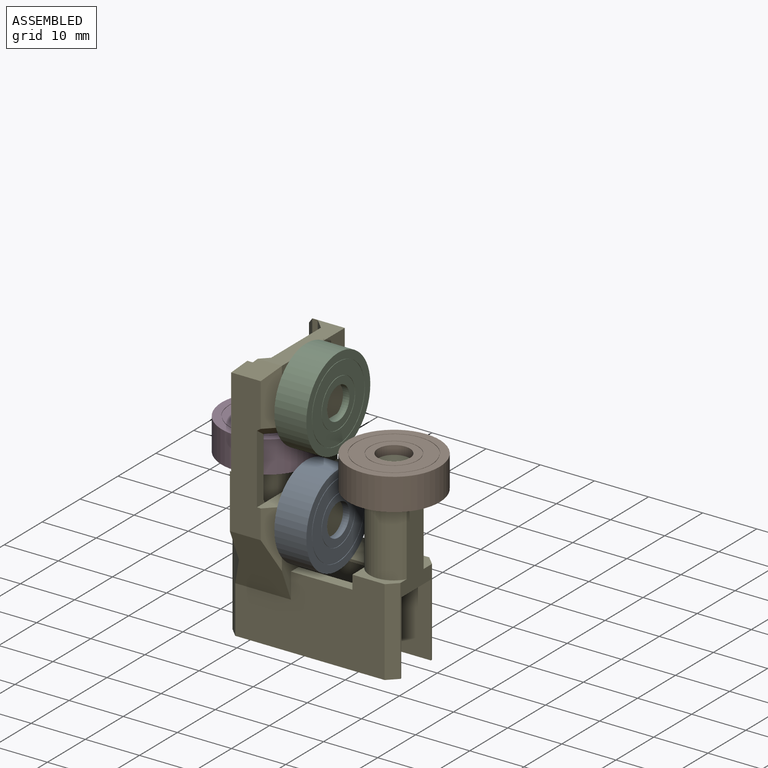
[diagram: assembled view]
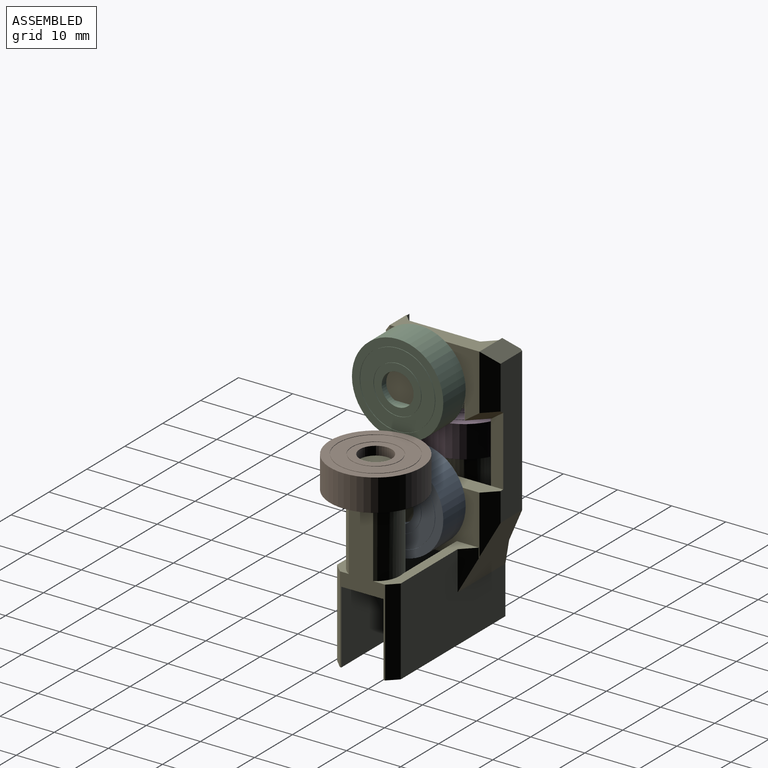
[diagram: assembled view, second angle]
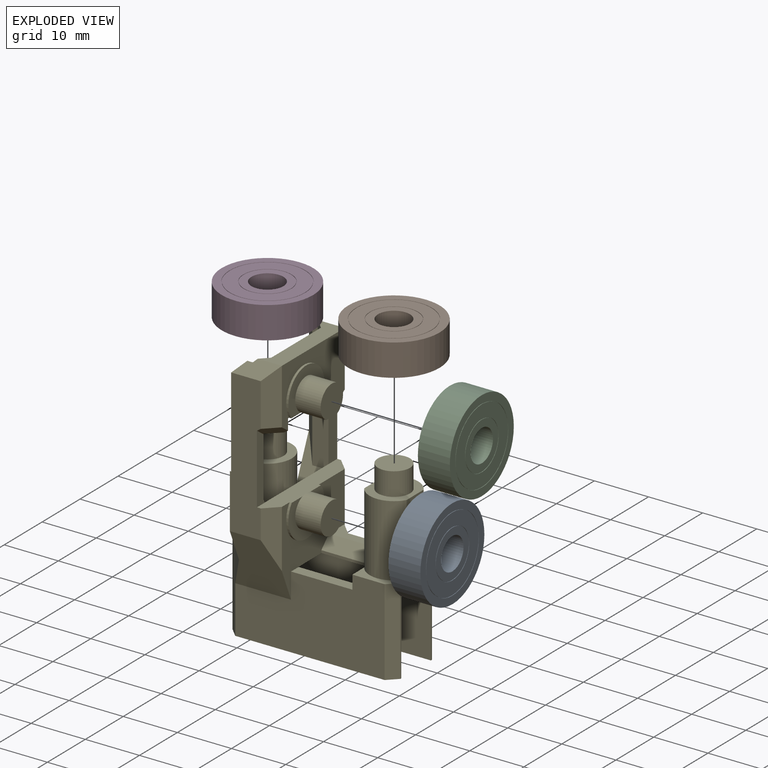
[diagram: exploded view]
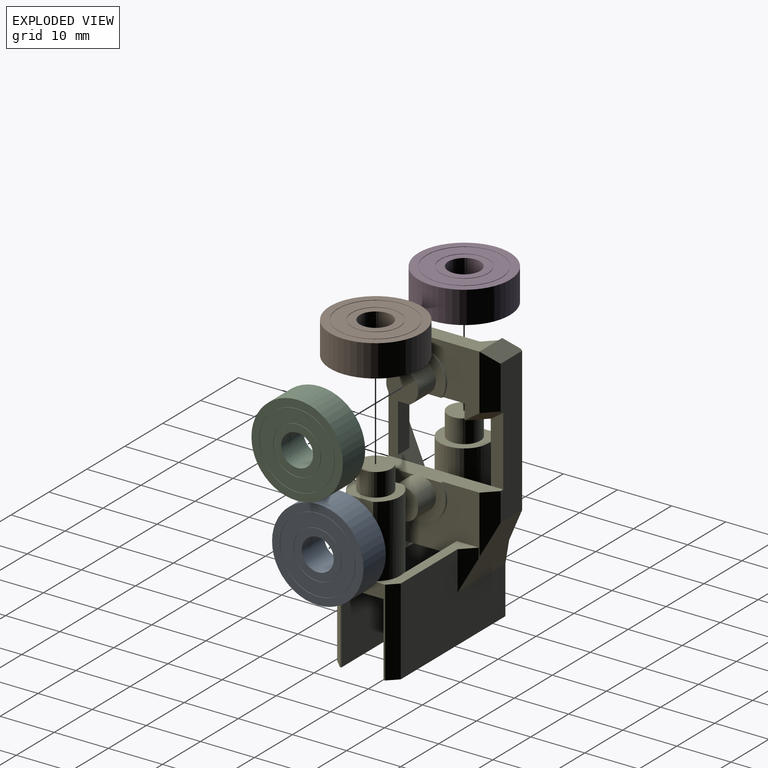
[diagram: exploded view, second angle]
ASSEMBLY  parts=5 mates=4
PART A: 20 faces, bbox 5.9x16.9x16.9 mm
  f0: plane 8.9x8.9mm, normal (1,0,0), area 2.8mm2, adj f11,f17
  f1: plane 8.9x8.9mm, normal (-1,0,0), area 2.8mm2, adj f2,f15
  f2: cylinder r=4.45mm len=8.9mm, axis (1,0,0), area 2.8mm2, adj f1,f13
  f3: plane 14x14mm, normal (1,0,0), area 4.4mm2, adj f6,f12
  f4: plane 14x14mm, normal (-1,0,0), area 4.4mm2, adj f5,f10
  f5: cylinder r=7mm len=14mm, axis (1,0,0), area 4.4mm2, adj f4,f8
  f6: cylinder r=7mm len=14mm, axis (1,0,0), area 4.4mm2, adj f3,f9
  f7: cylinder r=8.44mm len=16.88mm, axis (1,0,0), area 312.9mm2, adj f8,f9
  f8: plane 16.88x16.88mm, normal (-1,0,0), area 69.8mm2, adj f5,f7
  f9: plane 16.88x16.88mm, normal (1,0,0), area 69.8mm2, adj f6,f7
  f10: cylinder r=6.9mm len=13.8mm, axis (1,0,0), area 4.3mm2, adj f4,f13
  f11: cylinder r=4.45mm len=8.9mm, axis (1,0,0), area 2.8mm2, adj f0,f14
  f12: cylinder r=6.9mm len=13.8mm, axis (1,0,0), area 4.3mm2, adj f3,f14
  f13: plane 13.8x13.8mm, normal (-1,0,0), area 87.4mm2, adj f2,f10
  f14: plane 13.8x13.8mm, normal (1,0,0), area 87.4mm2, adj f11,f12
  f15: cylinder r=4.35mm len=8.7mm, axis (1,0,0), area 2.7mm2, adj f1,f18
  f16: cylinder r=2.95mm len=5.9mm, axis (1,0,0), area 109.4mm2, adj f18,f19
  f17: cylinder r=4.35mm len=8.7mm, axis (1,0,0), area 2.7mm2, adj f0,f19
  f18: plane 8.7x8.7mm, normal (-1,0,0), area 32.1mm2, adj f15,f16
  f19: plane 8.7x8.7mm, normal (1,0,0), area 32.1mm2, adj f16,f17
PART B: same geometry as A
PART C: same geometry as A
PART D: same geometry as A
PART E: 82 faces, bbox 31.6x21.7x49.3 mm
  f0: plane 2.01x1.02mm, normal (0,0,1), area 0.8mm2, adj f13,f45,f66
  f1: plane 16.59x12.19mm, normal (1,0,0), area 104.2mm2, adj f3,f4,f26,f29,f38,f59,f61,f76
  f2: plane 16.89x6.9mm, normal (-1,0,0), area 99.1mm2, adj f13,f32,f33,f57,f66
  f3: plane 2.88x0.7mm, normal (0,-1,0), area 2mm2, adj f1,f26,f56,f69,f77
  f4: plane 2.53x0.7mm, normal (0,1,0), area 1.6mm2, adj f1,f26,f71,f76
  f5: cylinder r=4.75mm len=3.54mm, axis (-1,0,0), area 1.5mm2, adj f15,f41,f42,f57
  f6: cylinder r=4.5mm len=15.17mm, axis (0,0,-1), area 124.9mm2, adj f8,f18,f25,f52,f73
  f7: cylinder r=4.5mm len=13.23mm, axis (0,0,-1), area 121.5mm2, adj f8,f10,f25,f52
  f8: plane 9x7.67mm, normal (0,0,1), area 31.7mm2, adj f6,f7,f25,f50,f52
  f9: plane 27.6x16mm, normal (0,-1,0), area 338.9mm2, adj f10,f15,f19,f31,f51,f52,f65,f81
  f10: plane 7.67x3.35mm, normal (0,0,1), area 11.8mm2, adj f7,f9,f25,f52,f81
  f11: plane 5.38x4mm, normal (0,0,1), area 7.8mm2, adj f14,f24,f45,f65
  f12: plane 6.7x3.65mm, normal (0,0,1), area 7.6mm2, adj f24,f33,f45,f63,f64,f66
  f13: plane 13.99x5.98mm, normal (0,0.92,0.39), area 55.3mm2, adj f0,f2,f14,f30,f35,f45,f54,f66
  f14: plane 15.72x5.82mm, normal (-1,0,0), area 38.6mm2, adj f11,f13,f30,f31,f45,f65
  f15: plane 16.59x16.41mm, normal (1,0,0), area 125.4mm2, adj f5,f9,f18,f21,f27,f31,f40,f41
  f16: plane 13.14x7.08mm, normal (-1,0,0), area 93.1mm2, adj f29,f70,f74,f75
  f17: plane 27.6x16mm, normal (0,1,0), area 350.8mm2, adj f18,f23,f27,f63,f67,f80
  f18: plane 19x6.22mm, normal (0,0,1), area 36.8mm2, adj f6,f15,f17,f25,f67,f73,f80
  f19: plane 31x1.96mm, normal (0,0,-1), area 57.9mm2, adj f9,f20,f24,f25,f65,f81
  f20: plane 31x13.5mm, normal (0,1,0), area 418.4mm2, adj f19,f21,f24,f25,f51
  f21: plane 31x7.8mm, normal (0,0,-1), area 173.3mm2, adj f15,f20,f22,f24,f25,f52,f53
  f22: plane 31x13.5mm, normal (0,-1,0), area 418.5mm2, adj f21,f23,f24,f25
  f23: plane 31x2mm, normal (0,0,-1), area 59.1mm2, adj f17,f22,f24,f25,f63,f80
  f24: plane 29.23x8.36mm, normal (-1,0,0), area 95.1mm2, adj f11,f12,f19,f20,f21,f22,f23,f45
  f25: plane 29.23x8.36mm, normal (1,0,0), area 87.8mm2, adj f6,f7,f8,f10,f18,f19,f20,f21
  f26: plane 12.24x5.8mm, normal (0,0,-1), area 25mm2, adj f1,f3,f4,f36,f37,f38,f39,f70
  f27: plane 12.6x11.1mm, normal (0,0.92,-0.39), area 103.3mm2, adj f15,f17,f28,f34,f63,f67,f68
  f28: plane 26.56x5.7mm, normal (0,1,0), area 142.2mm2, adj f27,f34,f55,f57,f59,f60,f68,f77
  f29: plane 16.59x4.99mm, normal (0,0,1), area 52.8mm2, adj f1,f16,f60,f62,f74,f75
  f30: plane 26.56x5.7mm, normal (0,-1,0), area 138.2mm2, adj f13,f14,f31,f54,f57,f61,f62,f72
  f31: plane 11.1x10.3mm, normal (0,-0.92,-0.39), area 96.5mm2, adj f9,f14,f15,f30,f65,f72
  f32: plane 24.53x3mm, normal (0,-1,0), area 59.1mm2, adj f2,f33,f55,f56,f60,f69,f70,f74
  f33: plane 12.93x7.3mm, normal (0,-0.92,0.39), area 49.7mm2, adj f2,f12,f32,f34,f64,f66,f79
  f34: plane 32.53x4.8mm, normal (-1,0,0), area 35.3mm2, adj f27,f28,f33,f60,f63,f64,f79
  f35: plane 22.41x3.13mm, normal (0,1,0), area 56.7mm2, adj f13,f54,f62,f70,f71,f75,f76,f78
  f36: cylinder r=2.95mm len=5.9mm, axis (-1,0,0), area 73.3mm2, adj f26,f37,f39
  f37: plane 5.9x5.54mm, normal (1,0,0), area 26.7mm2, adj f26,f36
  f38: cylinder r=4.75mm len=9.5mm, axis (-1,0,0), area 8.2mm2, adj f1,f26,f39
  f39: plane 9.5x7.34mm, normal (1,0,0), area 32.1mm2, adj f26,f36,f38
  f40: cylinder r=4.75mm len=9.43mm, axis (-1,0,0), area 6.8mm2, adj f15,f41,f42,f57
  f41: plane 0.4x0mm, normal (0,-0.99,-0.17), area 0mm2, adj f5,f15,f40,f42
  f42: plane 9.5x7.5mm, normal (1,0,0), area 33mm2, adj f5,f40,f41,f44,f57
  f43: plane 5.9x5.9mm, normal (1,0,0), area 27.3mm2, adj f44
  f44: cylinder r=2.95mm len=5.9mm, axis (-1,0,0), area 87mm2, adj f42,f43,f57,f58
  f45: cylinder r=4.5mm len=13.23mm, axis (0,0,-1), area 295.6mm2, adj f0,f11,f12,f13,f14,f24,f46,f66
  f46: plane 9x8.23mm, normal (0,0,1), area 33.4mm2, adj f24,f45,f48
  f47: plane 5.93x5.93mm, normal (0,0,1), area 27.6mm2, adj f48
  f48: cylinder r=2.97mm len=5.93mm, axis (0,0,-1), area 79.5mm2, adj f46,f47
  f49: plane 5.93x5.93mm, normal (0,0,1), area 27.6mm2, adj f50
  f50: cylinder r=2.97mm len=5.93mm, axis (0,0,-1), area 79.5mm2, adj f8,f49
  f51: plane 11.33x1.96mm, normal (0,0,1), area 22.2mm2, adj f9,f15,f20,f52
  f52: plane 15.74x8.06mm, normal (-1,0,0), area 85.3mm2, adj f6,f7,f8,f9,f10,f21,f51,f53
  f53: plane 11.33x0.5mm, normal (0,-1,0), area 5.7mm2, adj f15,f21,f52,f73
  f54: plane 12.78x2.01mm, normal (1,0,0), area 21.4mm2, adj f13,f30,f35,f57,f76
  f55: plane 12.78x2.29mm, normal (1,0,0), area 27.5mm2, adj f28,f32,f56,f57,f77
  f56: plane 3.32x2.89mm, normal (0,0,-1), area 1.6mm2, adj f3,f32,f55,f69,f77
  f57: plane 21.19x3.44mm, normal (0,0,1), area 61.5mm2, adj f2,f5,f15,f28,f30,f40,f42,f44
  f58: plane 2.15x0.2mm, normal (-1,0,0), area 0.3mm2, adj f44,f57
  f59: plane 10.27x2.3mm, normal (0.71,0.71,0), area 29.7mm2, adj f1,f28,f60,f77
  f60: plane 8x2.3mm, normal (0,0.71,0.71), area 19.4mm2, adj f28,f29,f32,f34,f59,f74,f79
  f61: plane 10.27x2.3mm, normal (0.71,-0.71,0), area 29.7mm2, adj f1,f30,f62,f76
  f62: plane 7.75x2.3mm, normal (0,-0.71,0.71), area 17mm2, adj f29,f30,f35,f61,f75,f78
  f63: plane 18.3x4mm, normal (-0.71,0.71,0), area 56.8mm2, adj f12,f17,f23,f24,f27,f34,f64
  f64: plane 3.37x2.3mm, normal (-0.71,0,0.71), area 5.6mm2, adj f12,f33,f34,f63
  f65: plane 16x4mm, normal (-0.71,-0.71,0), area 53.1mm2, adj f9,f11,f14,f19,f24,f31
  f66: plane 11.45x2.3mm, normal (-0.71,0,0.71), area 23.9mm2, adj f0,f2,f12,f13,f33,f45
  f67: plane 7.21x2.3mm, normal (0.71,0.71,0), area 14.6mm2, adj f15,f17,f18,f27
  f68: plane 10.73x2.3mm, normal (0.71,0.71,0), area 26.1mm2, adj f15,f27,f28,f57
  f69: plane 5.61x2.73mm, normal (-0.71,-0.71,0), area 16.4mm2, adj f3,f32,f56,f70
  f70: plane 17.14x4.3mm, normal (-0.71,0,-0.71), area 52.8mm2, adj f16,f26,f32,f35,f69,f71,f74,f75
  f71: plane 4.7x2.17mm, normal (-0.71,0.71,0), area 11.1mm2, adj f4,f35,f70,f76
  f72: plane 10.73x2.3mm, normal (0.71,-0.71,0), area 26.1mm2, adj f15,f30,f31,f57
  f73: plane 14.74x2.56mm, normal (0,-0.71,0.71), area 34.8mm2, adj f6,f15,f18,f52,f53
  f74: plane 7.08x2mm, normal (-0.71,-0.71,0), area 17.2mm2, adj f16,f29,f32,f60,f70
  f75: plane 7.08x2mm, normal (-0.71,0.71,0), area 17mm2, adj f16,f29,f35,f62,f70
  f76: plane 3.93x3mm, normal (0.5,-0.5,-0.71), area 9.2mm2, adj f1,f4,f30,f35,f54,f61,f71
  f77: plane 5.02x3mm, normal (0.5,0.5,-0.71), area 11.6mm2, adj f1,f3,f28,f55,f56,f59
  f78: plane 22.41x1.75mm, normal (-0.71,0.71,0), area 48.3mm2, adj f13,f30,f35,f62
  f79: plane 24.53x2mm, normal (-0.71,-0.71,0), area 59.9mm2, adj f32,f33,f34,f60
  f80: plane 16x1.7mm, normal (0.71,0.71,0), area 38.5mm2, adj f17,f18,f23,f25
  f81: plane 16x1.7mm, normal (0.71,-0.71,0), area 38.5mm2, adj f9,f10,f19,f25
PLACE A t=(32.24,-39.37,31.01)mm
PLACE B rot(axis=(0,-1,0),90deg) t=(43.55,-37.25,40.3)mm
PLACE C t=(32.24,-39.37,50.51)mm
PLACE D rot(axis=(0,-1,0),90deg) t=(20.18,-37.25,40.3)mm
PLACE E t=(25.89,-3.14,15.28)mm
MATE fastened B.f2 <-> E.f6  axis (0,0,-1) through (43.99,7.17,37.35)mm
MATE fastened A.f2 <-> E.f5  axis (-1,0,0) through (29.29,5.05,30.58)mm
MATE fastened D.f2 <-> E.f45  axis (0,0,-1) through (20.62,7.17,37.35)mm
MATE fastened C.f2 <-> E.f36  axis (-1,0,0) through (29.29,5.05,50.08)mm
